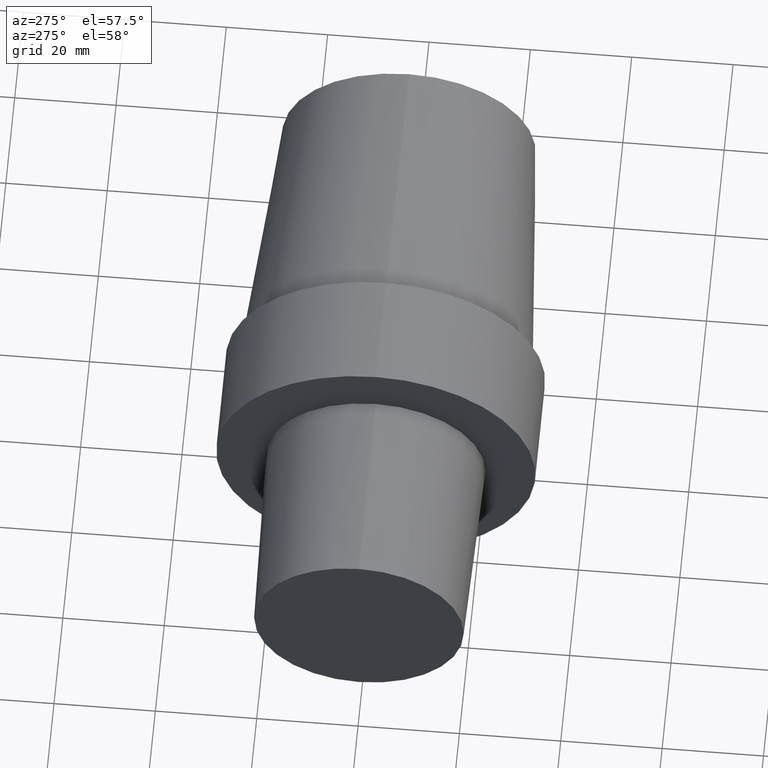
[diagram: clean part render]
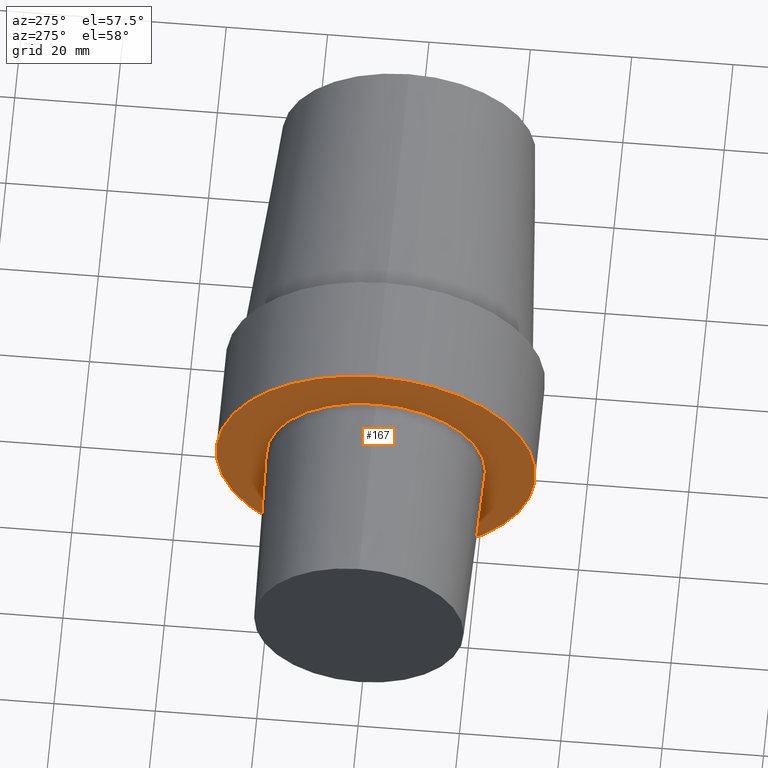
[diagram: same view with one face highlighted and labeled with its STEP entity id]
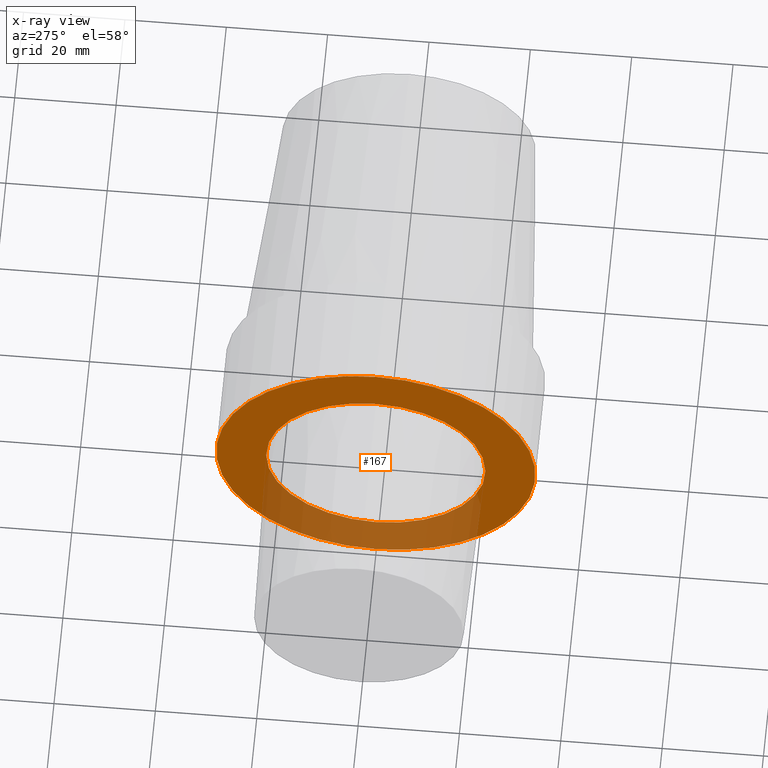
[diagram: x-ray of the same camera — body ghosted, the highlighted face saturated]
A machine part, auxiliary view. The second image highlights one B-rep face of the part: STEP entity #167.
The next image is the same camera in x-ray: the body ghosted, the highlighted face saturated — about 30% of this face is hidden behind the body in this view.
In plain terms, the highlighted planar face has unit normal (1, 0, 0).
Its self-contained STEP definition (entity closure, byte-faithful):
#7 = CARTESIAN_POINT ( 'NONE',  ( 0.000000000000000000, 0.000000000000000000, -21.63061196907898065 ) ) ;
#20 = CIRCLE ( 'NONE', #235, 31.49999996787000001 ) ;
#25 = VERTEX_POINT ( 'NONE', #61 ) ;
#29 = CIRCLE ( 'NONE', #378, 31.49999996787000001 ) ;
#39 = PLANE ( 'NONE',  #75 ) ;
#51 = ORIENTED_EDGE ( 'NONE', *, *, #210, .F. ) ;
#59 = DIRECTION ( 'NONE',  ( 1.000000000000000000, 0.000000000000000000, 0.000000000000000000 ) ) ;
#61 = CARTESIAN_POINT ( 'NONE',  ( 0.000000000000000000, 3.857637413379370248E-15, -31.49999996787000001 ) ) ;
#63 = CIRCLE ( 'NONE', #143, 21.63061196907898065 ) ;
#72 = CARTESIAN_POINT ( 'NONE',  ( 0.000000000000000000, 2.648985971153096932E-15, 21.63061196907898065 ) ) ;
#75 = AXIS2_PLACEMENT_3D ( 'NONE', #299, #59, #296 ) ;
#76 = EDGE_CURVE ( 'NONE', #317, #25, #20, .T. ) ;
#121 = DIRECTION ( 'NONE',  ( -1.000000000000000000, 0.000000000000000000, 0.000000000000000000 ) ) ;
#127 = AXIS2_PLACEMENT_3D ( 'NONE', #149, #292, #266 ) ;
#138 = VERTEX_POINT ( 'NONE', #7 ) ;
#141 = EDGE_CURVE ( 'NONE', #25, #317, #29, .T. ) ;
#143 = AXIS2_PLACEMENT_3D ( 'NONE', #200, #176, #145 ) ;
#145 = DIRECTION ( 'NONE',  ( 0.000000000000000000, 0.000000000000000000, 1.000000000000000000 ) ) ;
#149 = CARTESIAN_POINT ( 'NONE',  ( 0.000000000000000000, 0.000000000000000000, 0.000000000000000000 ) ) ;
#158 = FACE_OUTER_BOUND ( 'NONE', #226, .T. ) ;
#167 = ADVANCED_FACE ( 'NONE', ( #337, #158 ), #39, .F. ) ;
#176 = DIRECTION ( 'NONE',  ( -1.000000000000000000, 0.000000000000000000, 0.000000000000000000 ) ) ;
#179 = CARTESIAN_POINT ( 'NONE',  ( 0.000000000000000000, 0.000000000000000000, 0.000000000000000000 ) ) ;
#187 = CIRCLE ( 'NONE', #127, 21.63061196907898065 ) ;
#200 = CARTESIAN_POINT ( 'NONE',  ( 0.000000000000000000, 0.000000000000000000, 0.000000000000000000 ) ) ;
#203 = ORIENTED_EDGE ( 'NONE', *, *, #216, .F. ) ;
#210 = EDGE_CURVE ( 'NONE', #138, #348, #63, .T. ) ;
#216 = EDGE_CURVE ( 'NONE', #348, #138, #187, .T. ) ;
#226 = EDGE_LOOP ( 'NONE', ( #346, #284 ) ) ;
#235 = AXIS2_PLACEMENT_3D ( 'NONE', #179, #352, #327 ) ;
#240 = CARTESIAN_POINT ( 'NONE',  ( 0.000000000000000000, 0.000000000000000000, 0.000000000000000000 ) ) ;
#265 = DIRECTION ( 'NONE',  ( 0.000000000000000000, 0.000000000000000000, 1.000000000000000000 ) ) ;
#266 = DIRECTION ( 'NONE',  ( 0.000000000000000000, 0.000000000000000000, 1.000000000000000000 ) ) ;
#284 = ORIENTED_EDGE ( 'NONE', *, *, #141, .T. ) ;
#292 = DIRECTION ( 'NONE',  ( -1.000000000000000000, 0.000000000000000000, 0.000000000000000000 ) ) ;
#296 = DIRECTION ( 'NONE',  ( 0.000000000000000000, 1.000000000000000000, 0.000000000000000000 ) ) ;
#299 = CARTESIAN_POINT ( 'NONE',  ( 0.000000000000000000, 31.49999996787000001, 0.000000000000000000 ) ) ;
#317 = VERTEX_POINT ( 'NONE', #325 ) ;
#320 = EDGE_LOOP ( 'NONE', ( #51, #203 ) ) ;
#325 = CARTESIAN_POINT ( 'NONE',  ( 0.000000000000000000, 0.000000000000000000, 31.49999996787000001 ) ) ;
#327 = DIRECTION ( 'NONE',  ( 0.000000000000000000, 0.000000000000000000, 1.000000000000000000 ) ) ;
#337 = FACE_BOUND ( 'NONE', #320, .T. ) ;
#346 = ORIENTED_EDGE ( 'NONE', *, *, #76, .T. ) ;
#348 = VERTEX_POINT ( 'NONE', #72 ) ;
#352 = DIRECTION ( 'NONE',  ( -1.000000000000000000, 0.000000000000000000, 0.000000000000000000 ) ) ;
#378 = AXIS2_PLACEMENT_3D ( 'NONE', #240, #121, #265 ) ;